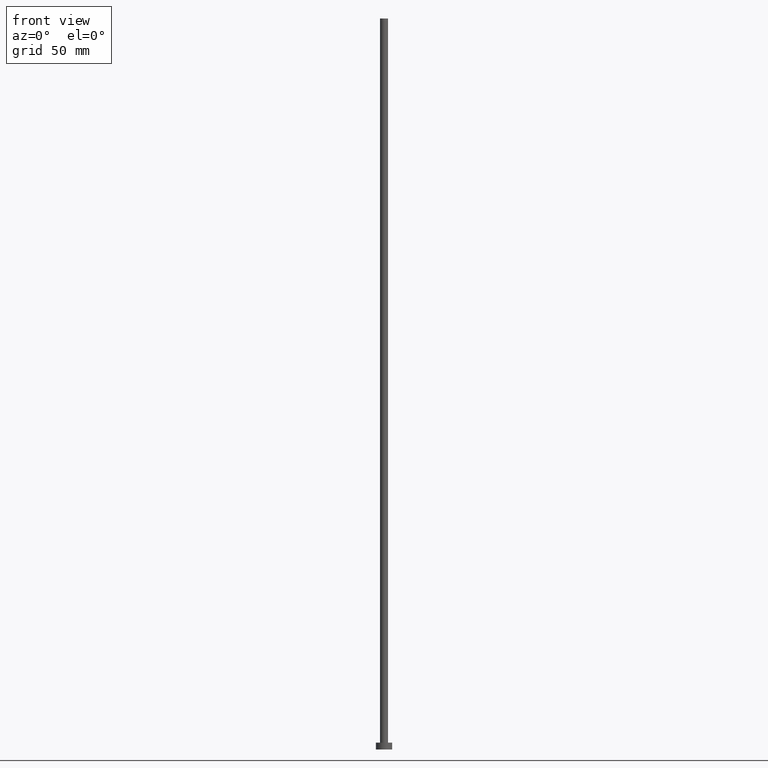
[diagram: clean part render]
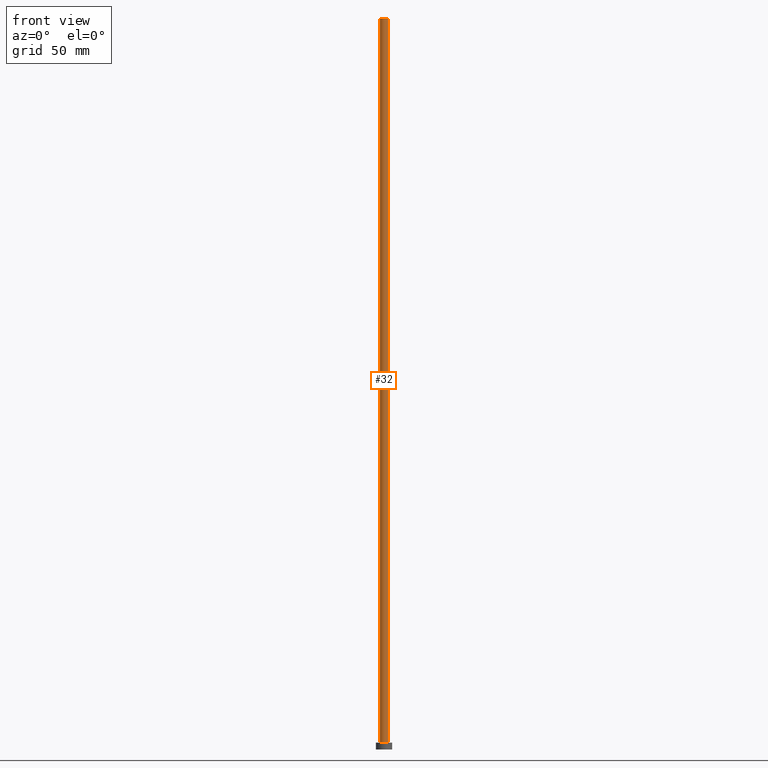
[diagram: same view with one face highlighted and labeled with its STEP entity id]
A machine part, front view. The second image highlights one B-rep face of the part: STEP entity #32.
In plain terms, the highlighted cylindrical surface (edge-blend (fillet) strip) has radius 1.75 mm, axis along (-0, -0, -1).
Its self-contained STEP definition (entity closure, byte-faithful):
#7 = CARTESIAN_POINT ( 'NONE',  ( -1.750000000000000000, 0.000000000000000000, 3.000000000000000000 ) ) ;
#10 = VERTEX_POINT ( 'NONE', #7 ) ;
#12 = VECTOR ( 'NONE', #26, 1000.000000000000000 ) ;
#14 = CARTESIAN_POINT ( 'NONE',  ( 0.000000000000000000, 0.000000000000000000, 315.0000000000000000 ) ) ;
#20 = DIRECTION ( 'NONE',  ( 0.000000000000000000, 0.000000000000000000, 1.000000000000000000 ) ) ;
#26 = DIRECTION ( 'NONE',  ( -0.000000000000000000, -0.000000000000000000, -1.000000000000000000 ) ) ;
#28 = AXIS2_PLACEMENT_3D ( 'NONE', #56, #46, #220 ) ;
#32 = ADVANCED_FACE ( 'NONE', ( #86 ), #167, .T. ) ;
#34 = CARTESIAN_POINT ( 'NONE',  ( 0.000000000000000000, 0.000000000000000000, 315.0000000000000000 ) ) ;
#46 = DIRECTION ( 'NONE',  ( 0.000000000000000000, 0.000000000000000000, 1.000000000000000000 ) ) ;
#49 = EDGE_LOOP ( 'NONE', ( #88, #206, #240, #150 ) ) ;
#50 = CARTESIAN_POINT ( 'NONE',  ( -1.750000000000000000, 0.000000000000000000, 315.0000000000000000 ) ) ;
#51 = VERTEX_POINT ( 'NONE', #199 ) ;
#56 = CARTESIAN_POINT ( 'NONE',  ( 0.000000000000000000, 0.000000000000000000, 3.000000000000000000 ) ) ;
#63 = DIRECTION ( 'NONE',  ( -0.000000000000000000, -0.000000000000000000, -1.000000000000000000 ) ) ;
#71 = AXIS2_PLACEMENT_3D ( 'NONE', #14, #250, #138 ) ;
#77 = CIRCLE ( 'NONE', #28, 1.750000000000000000 ) ;
#86 = FACE_OUTER_BOUND ( 'NONE', #49, .T. ) ;
#88 = ORIENTED_EDGE ( 'NONE', *, *, #190, .F. ) ;
#90 = CARTESIAN_POINT ( 'NONE',  ( -1.750000000000000000, 0.000000000000000000, 315.0000000000000000 ) ) ;
#106 = LINE ( 'NONE', #134, #237 ) ;
#126 = DIRECTION ( 'NONE',  ( 1.000000000000000000, 0.000000000000000000, 0.000000000000000000 ) ) ;
#134 = CARTESIAN_POINT ( 'NONE',  ( 1.750000000000000000, 2.143131898507868297E-16, 315.0000000000000000 ) ) ;
#138 = DIRECTION ( 'NONE',  ( -1.000000000000000000, 0.000000000000000000, 0.000000000000000000 ) ) ;
#147 = CIRCLE ( 'NONE', #159, 1.750000000000000000 ) ;
#150 = ORIENTED_EDGE ( 'NONE', *, *, #161, .T. ) ;
#156 = EDGE_CURVE ( 'NONE', #228, #241, #147, .T. ) ;
#159 = AXIS2_PLACEMENT_3D ( 'NONE', #34, #20, #126 ) ;
#161 = EDGE_CURVE ( 'NONE', #10, #51, #77, .T. ) ;
#167 = CYLINDRICAL_SURFACE ( 'NONE', #71, 1.750000000000000000 ) ;
#190 = EDGE_CURVE ( 'NONE', #241, #51, #106, .T. ) ;
#199 = CARTESIAN_POINT ( 'NONE',  ( 1.750000000000000000, 2.143131898507868297E-16, 3.000000000000000000 ) ) ;
#206 = ORIENTED_EDGE ( 'NONE', *, *, #156, .F. ) ;
#208 = CARTESIAN_POINT ( 'NONE',  ( 1.750000000000000000, 2.143131898507868297E-16, 315.0000000000000000 ) ) ;
#220 = DIRECTION ( 'NONE',  ( 1.000000000000000000, 0.000000000000000000, 0.000000000000000000 ) ) ;
#228 = VERTEX_POINT ( 'NONE', #50 ) ;
#237 = VECTOR ( 'NONE', #63, 1000.000000000000000 ) ;
#240 = ORIENTED_EDGE ( 'NONE', *, *, #253, .T. ) ;
#241 = VERTEX_POINT ( 'NONE', #208 ) ;
#243 = LINE ( 'NONE', #90, #12 ) ;
#250 = DIRECTION ( 'NONE',  ( -0.000000000000000000, -0.000000000000000000, -1.000000000000000000 ) ) ;
#253 = EDGE_CURVE ( 'NONE', #228, #10, #243, .T. ) ;